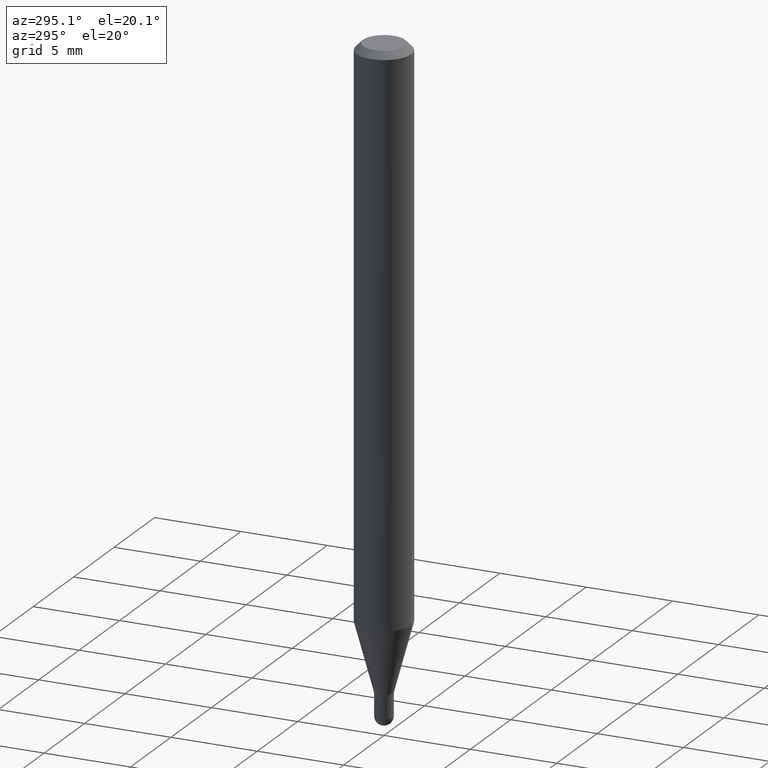
[diagram: clean part render]
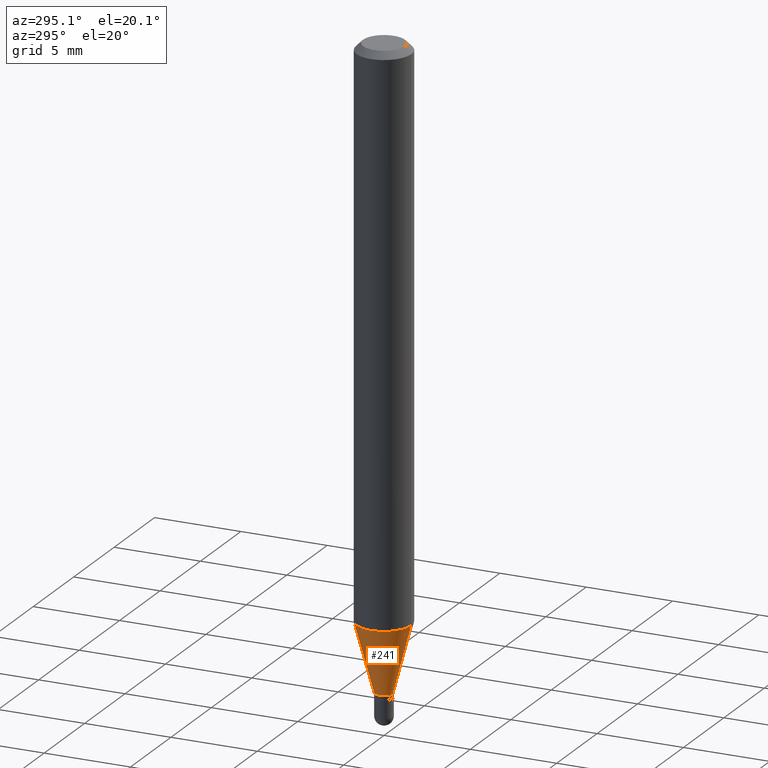
[diagram: same view with one face highlighted and labeled with its STEP entity id]
A machine part, auxiliary view. The second image highlights one B-rep face of the part: STEP entity #241.
In plain terms, the highlighted conical surface has half-angle 15 deg.
Its self-contained STEP definition (entity closure, byte-faithful):
#1 = CONICAL_SURFACE ( 'NONE', #314, 0.02049999999999994188, 0.2617993877991504625 ) ;
#12 = EDGE_LOOP ( 'NONE', ( #67, #322, #216, #130 ) ) ;
#15 = VERTEX_POINT ( 'NONE', #297 ) ;
#19 = DIRECTION ( 'NONE',  ( -2.445305272061013346E-29, 3.491715529016674512E-15, 1.000000000000000000 ) ) ;
#43 = VECTOR ( 'NONE', #243, 39.37007874015748854 ) ;
#63 = EDGE_CURVE ( 'NONE', #15, #440, #329, .T. ) ;
#67 = ORIENTED_EDGE ( 'NONE', *, *, #63, .F. ) ;
#73 = CARTESIAN_POINT ( 'NONE',  ( 4.440892098500933817E-16, 0.06249999999999554523, -1.271253866082108219 ) ) ;
#96 = VERTEX_POINT ( 'NONE', #421 ) ;
#130 = ORIENTED_EDGE ( 'NONE', *, *, #182, .F. ) ;
#132 = DIRECTION ( 'NONE',  ( -6.982962677686265922E-15, -1.000000000000000000, 4.370956789862821150E-15 ) ) ;
#142 = DIRECTION ( 'NONE',  ( 1.839019923739601499E-15, 0.2588190451025251249, 0.9659258262890670910 ) ) ;
#161 = VECTOR ( 'NONE', #142, 39.37007874015748854 ) ;
#182 = EDGE_CURVE ( 'NONE', #440, #96, #437, .T. ) ;
#216 = ORIENTED_EDGE ( 'NONE', *, *, #446, .T. ) ;
#218 = CIRCLE ( 'NONE', #275, 0.02049999999999994188 ) ;
#241 = ADVANCED_FACE ( 'NONE', ( #279 ), #1, .T. ) ;
#243 = DIRECTION ( 'NONE',  ( -1.807323732225331323E-15, -0.2588190451025183525, 0.9659258262890689783 ) ) ;
#275 = AXIS2_PLACEMENT_3D ( 'NONE', #346, #381, #419 ) ;
#279 = FACE_OUTER_BOUND ( 'NONE', #12, .T. ) ;
#297 = CARTESIAN_POINT ( 'NONE',  ( 2.948752353404744289E-16, 0.02049999999999495628, -1.428000000000000380 ) ) ;
#312 = CARTESIAN_POINT ( 'NONE',  ( -1.431507348925331187E-16, -0.02050000000000492748, -1.428000000000000380 ) ) ;
#314 = AXIS2_PLACEMENT_3D ( 'NONE', #366, #19, #466 ) ;
#317 = LINE ( 'NONE', #312, #43 ) ;
#322 = ORIENTED_EDGE ( 'NONE', *, *, #372, .T. ) ;
#329 = LINE ( 'NONE', #493, #161 ) ;
#346 = CARTESIAN_POINT ( 'NONE',  ( 3.491895928503127378E-29, -4.986169775435812878E-15, -1.428000000000000380 ) ) ;
#366 = CARTESIAN_POINT ( 'NONE',  ( 3.491895928503127378E-29, -4.986169775435812878E-15, -1.428000000000000380 ) ) ;
#372 = EDGE_CURVE ( 'NONE', #15, #399, #218, .T. ) ;
#381 = DIRECTION ( 'NONE',  ( -2.445305272061013346E-29, 3.491715529016674512E-15, 1.000000000000000000 ) ) ;
#382 = AXIS2_PLACEMENT_3D ( 'NONE', #402, #444, #132 ) ;
#399 = VERTEX_POINT ( 'NONE', #463 ) ;
#402 = CARTESIAN_POINT ( 'NONE',  ( 3.108603780858524762E-29, -4.438856865521379751E-15, -1.271253866082107997 ) ) ;
#419 = DIRECTION ( 'NONE',  ( -6.982962677686265133E-15, -1.000000000000000000, 0.000000000000000000 ) ) ;
#421 = CARTESIAN_POINT ( 'NONE',  ( -4.364351673553607559E-16, -0.06250000000000445477, -1.271253866082107775 ) ) ;
#437 = CIRCLE ( 'NONE', #382, 0.06250000000000000000 ) ;
#440 = VERTEX_POINT ( 'NONE', #73 ) ;
#444 = DIRECTION ( 'NONE',  ( -2.445305272061013346E-29, 3.491715529016674512E-15, 1.000000000000000000 ) ) ;
#446 = EDGE_CURVE ( 'NONE', #399, #96, #317, .T. ) ;
#463 = CARTESIAN_POINT ( 'NONE',  ( -1.431507348925331187E-16, -0.02050000000000492748, -1.428000000000000380 ) ) ;
#466 = DIRECTION ( 'NONE',  ( -6.982962677686265133E-15, -1.000000000000000000, 0.000000000000000000 ) ) ;
#493 = CARTESIAN_POINT ( 'NONE',  ( 1.456612608308550076E-16, 0.02049999999999495628, -1.428000000000000380 ) ) ;